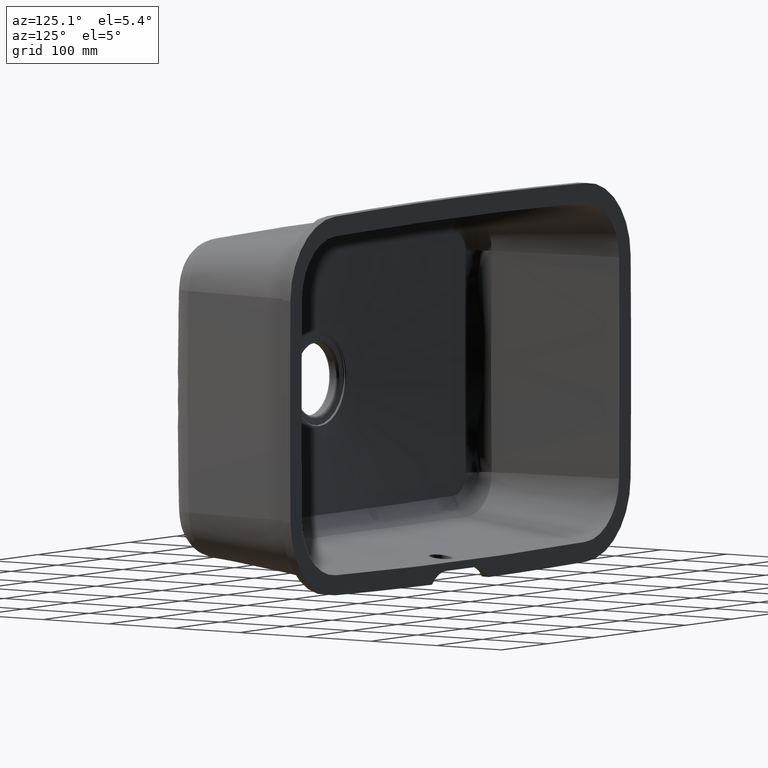
[diagram: clean part render]
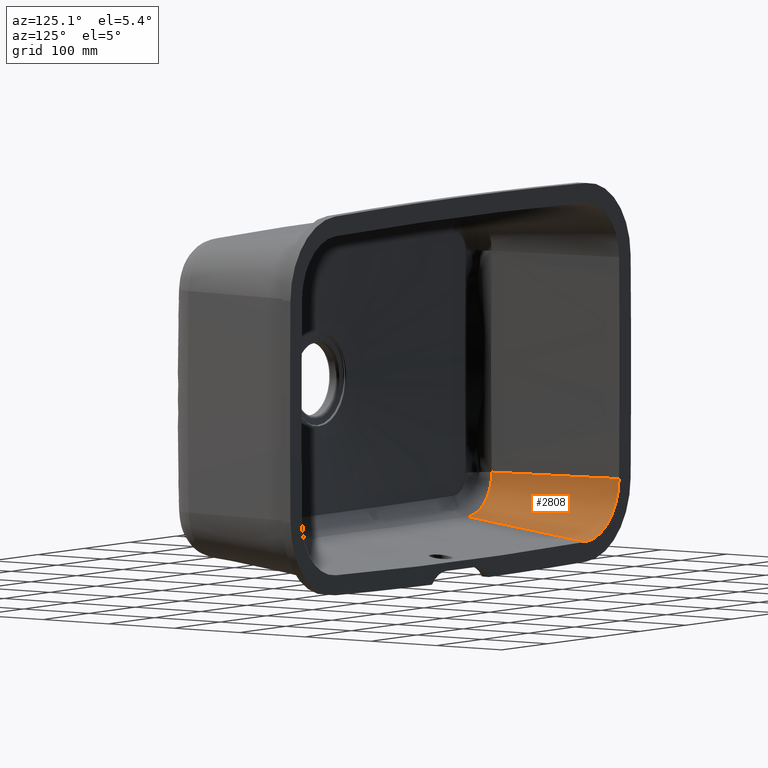
[diagram: same view with one face highlighted and labeled with its STEP entity id]
A machine part, auxiliary view. The second image highlights one B-rep face of the part: STEP entity #2808.
In plain terms, the highlighted conical surface has half-angle 7 deg.
Its self-contained STEP definition (entity closure, byte-faithful):
#309 = ORIENTED_EDGE ( 'NONE', *, *, #3034, .F. ) ;
#649 = EDGE_CURVE ( 'NONE', #5315, #4497, #6355, .T. ) ;
#845 = DIRECTION ( 'NONE',  ( -0.0000000000000000000, -1.000000000000000000, 0.0000000000000000000 ) ) ;
#887 = CARTESIAN_POINT ( 'NONE',  ( -269.6277817311143400, 215.5000000000000000, -137.9024523715530700 ) ) ;
#903 = ORIENTED_EDGE ( 'NONE', *, *, #5203, .F. ) ;
#928 = EDGE_CURVE ( 'NONE', #5315, #6378, #6102, .T. ) ;
#960 = VECTOR ( 'NONE', #1825, 1000.000000000000100 ) ;
#1107 = CARTESIAN_POINT ( 'NONE',  ( -304.6377385108682500, 36.61260460108319800, -177.2151497445761100 ) ) ;
#1260 = VECTOR ( 'NONE', #1321, 999.9999999999998900 ) ;
#1321 = DIRECTION ( 'NONE',  ( -0.002799758081485629300, 0.9925461516413220900, -0.1218371791231518400 ) ) ;
#1523 = DIRECTION ( 'NONE',  ( 0.0000000000000000000, 0.0000000000000000000, 1.000000000000000000 ) ) ;
#1554 = CARTESIAN_POINT ( 'NONE',  ( -302.0709050410340500, 36.57966647098461300, -179.3550001306104200 ) ) ;
#1595 = CARTESIAN_POINT ( 'NONE',  ( -296.4499686218053400, 36.49629215957875800, -183.0894845630886600 ) ) ;
#1617 = CARTESIAN_POINT ( 'NONE',  ( -297.9002362012142300, 36.51867733339925300, -182.1998088305729500 ) ) ;
#1825 = DIRECTION ( 'NONE',  ( -0.1218595932063094600, 0.9925461516413219800, -0.001541559468398516000 ) ) ;
#1950 = DIRECTION ( 'NONE',  ( 0.0000000000000000000, 1.000000000000000000, -0.0000000000000000000 ) ) ;
#2076 = CARTESIAN_POINT ( 'NONE',  ( -309.2982310618243700, 36.66162718503441200, -172.3948513643220200 ) ) ;
#2100 = CARTESIAN_POINT ( 'NONE',  ( -322.1145747854075700, 36.60016536626998400, -141.9555311162773700 ) ) ;
#2237 = AXIS2_PLACEMENT_3D ( 'NONE', #887, #1950, #5677 ) ;
#2377 = FACE_OUTER_BOUND ( 'NONE', #2472, .T. ) ;
#2472 = EDGE_LOOP ( 'NONE', ( #903, #309, #6206, #4975 ) ) ;
#2617 = CARTESIAN_POINT ( 'NONE',  ( -321.7512570111510400, 36.63010147584762400, -145.2851138941962600 ) ) ;
#2662 = CARTESIAN_POINT ( 'NONE',  ( -316.8035183510471600, 36.70229234178619000, -161.2882724339353600 ) ) ;
#2699 = CARTESIAN_POINT ( 'NONE',  ( -312.4384122447780200, 36.68624633383847600, -168.4142877535713600 ) ) ;
#2808 = ADVANCED_FACE ( 'NONE', ( #2377 ), #6301, .F. ) ;
#3034 = EDGE_CURVE ( 'NONE', #4497, #6550, #4477, .T. ) ;
#3198 = CARTESIAN_POINT ( 'NONE',  ( -277.5738182883815200, 36.14641483930758200, -189.8861490678557400 ) ) ;
#3201 = CARTESIAN_POINT ( 'NONE',  ( -322.1527735335840200, 36.56214804486698000, -138.5669088686592300 ) ) ;
#3258 = CARTESIAN_POINT ( 'NONE',  ( -319.3302505067828700, 36.68730497208595400, -155.0321528532420500 ) ) ;
#3607 = CARTESIAN_POINT ( 'NONE',  ( -270.8329622083052800, 35.99640697827420200, -190.3483371239670400 ) ) ;
#3927 = CIRCLE ( 'NONE', #6629, 74.50000000000042600 ) ;
#4037 = CARTESIAN_POINT ( 'NONE',  ( -269.6277817311143400, 215.5000000000000300, -137.9024523715530700 ) ) ;
#4237 = CARTESIAN_POINT ( 'NONE',  ( -287.3887542440258500, 36.34161675425039600, -187.4220482845447000 ) ) ;
#4324 = CARTESIAN_POINT ( 'NONE',  ( -284.1984055529258600, 36.28105005424735200, -188.4482381470032000 ) ) ;
#4477 = LINE ( 'NONE', #6542, #960 ) ;
#4486 = CARTESIAN_POINT ( 'NONE',  ( -271.3393030312383300, 215.5000000000029000, -212.3827900106878700 ) ) ;
#4497 = VERTEX_POINT ( 'NONE', #3201 ) ;
#4772 = CARTESIAN_POINT ( 'NONE',  ( -274.2227817337692400, 36.07403717559167000, -190.2799750548490500 ) ) ;
#4809 = CARTESIAN_POINT ( 'NONE',  ( -293.5000185907879300, 36.44846442229132300, -184.7084035791883700 ) ) ;
#4853 = CARTESIAN_POINT ( 'NONE',  ( -311.4396868882332700, 36.67942986449628500, -169.7688050057506400 ) ) ;
#4975 = ORIENTED_EDGE ( 'NONE', *, *, #928, .T. ) ;
#5203 = EDGE_CURVE ( 'NONE', #6550, #6378, #3927, .T. ) ;
#5298 = CARTESIAN_POINT ( 'NONE',  ( -315.2241383559705200, 36.70066164520220300, -164.2329493872482800 ) ) ;
#5315 = VERTEX_POINT ( 'NONE', #3607 ) ;
#5677 = DIRECTION ( 'NONE',  ( 0.0000000000000000000, 0.0000000000000000000, 1.000000000000000000 ) ) ;
#5799 = CARTESIAN_POINT ( 'NONE',  ( -320.7386740148803600, 36.66354547324548500, -150.1944399141816900 ) ) ;
#5823 = CARTESIAN_POINT ( 'NONE',  ( -322.1527735335840200, 36.56214804486698000, -138.5669088686592300 ) ) ;
#5865 = CARTESIAN_POINT ( 'NONE',  ( -308.1727782157491900, 36.65078514650893700, -173.6452492479275000 ) ) ;
#6102 = LINE ( 'NONE', #6566, #1260 ) ;
#6206 = ORIENTED_EDGE ( 'NONE', *, *, #649, .F. ) ;
#6301 = CONICAL_SURFACE ( 'NONE', #2237, 74.50000000000042600, 0.1221730476396032900 ) ;
#6338 = CARTESIAN_POINT ( 'NONE',  ( -270.8329622083052800, 35.99640697827420200, -190.3483371239670400 ) ) ;
#6355 = B_SPLINE_CURVE_WITH_KNOTS ( 'NONE', 3,
 ( #6338, #4772, #3198, #4324, #4237, #6885, #4809, #1595, #1617, #1554, #1107, #5865, #2076, #4853, #2699, #5298, #2662, #6433, #3258, #6905, #5799, #2617, #2100, #5823 ),
 .UNSPECIFIED., .F., .F.,
 ( 4, 2, 2, 2, 2, 2, 2, 2, 2, 2, 2, 4 ),
 ( 0.0000000000000000000, 0.1250000000000000600, 0.2499999999999999400, 0.3125000000000000000, 0.3750000000000000000, 0.5000000000000000000, 0.5625000000000000000, 0.6250000000000000000, 0.7500000000000000000, 0.8125000000000000000, 0.8749999999999998900, 1.000000000000000000 ),
 .UNSPECIFIED. ) ;
#6378 = VERTEX_POINT ( 'NONE', #4486 ) ;
#6433 = CARTESIAN_POINT ( 'NONE',  ( -318.7505650245281000, 36.69261391912778000, -156.6316333872312600 ) ) ;
#6542 = CARTESIAN_POINT ( 'NONE',  ( -344.1218213329279900, 215.5000000000000000, -138.8448237439325200 ) ) ;
#6550 = VERTEX_POINT ( 'NONE', #6709 ) ;
#6566 = CARTESIAN_POINT ( 'NONE',  ( -271.3393030312328700, 215.5000000000000000, -212.3827900106896000 ) ) ;
#6629 = AXIS2_PLACEMENT_3D ( 'NONE', #4037, #845, #1523 ) ;
#6709 = CARTESIAN_POINT ( 'NONE',  ( -344.1218213329291300, 215.5000000000029000, -138.8448237439325200 ) ) ;
#6885 = CARTESIAN_POINT ( 'NONE',  ( -291.9946075886414300, 36.42294715530047700, -185.4423156498520200 ) ) ;
#6905 = CARTESIAN_POINT ( 'NONE',  ( -320.3226481152538000, 36.67276913268487000, -151.8166539603498400 ) ) ;